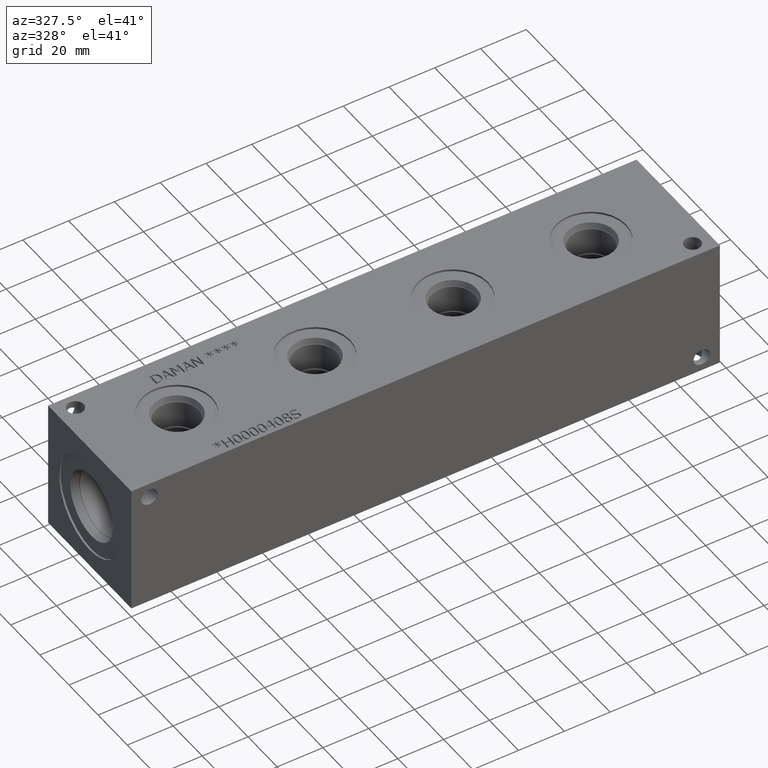
[diagram: clean part render]
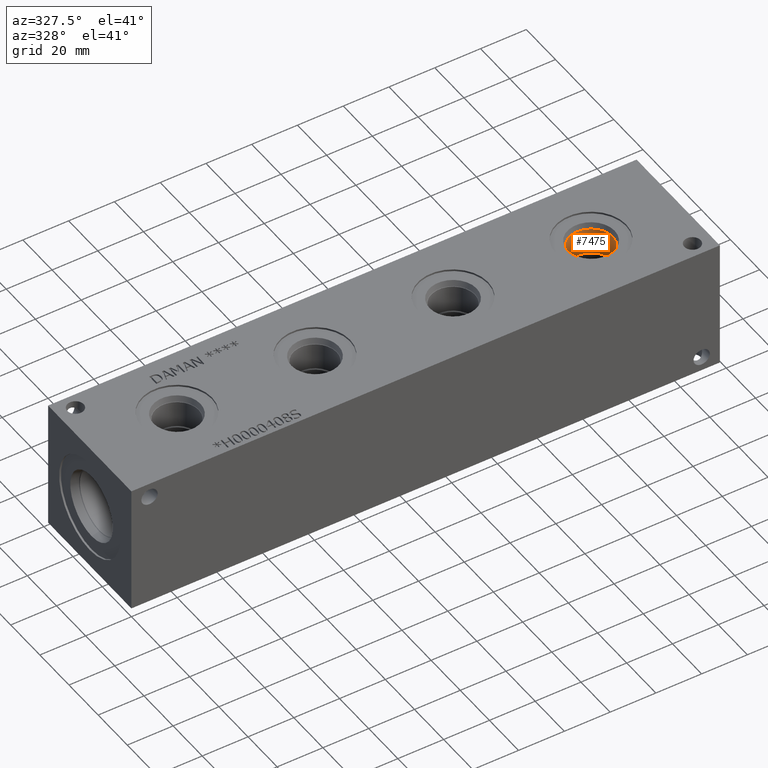
[diagram: same view with one face highlighted and labeled with its STEP entity id]
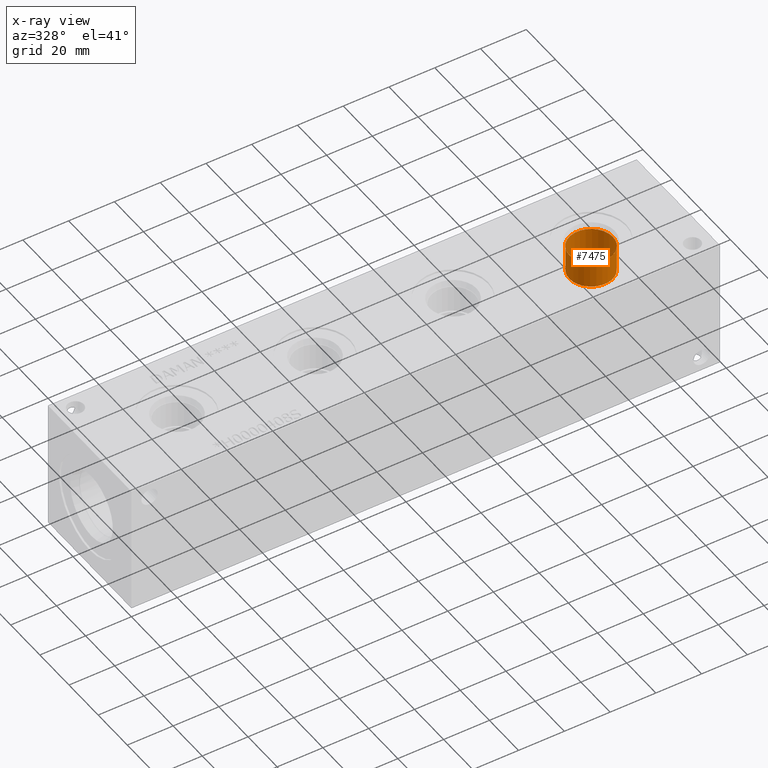
[diagram: x-ray of the same camera — body ghosted, the highlighted face saturated]
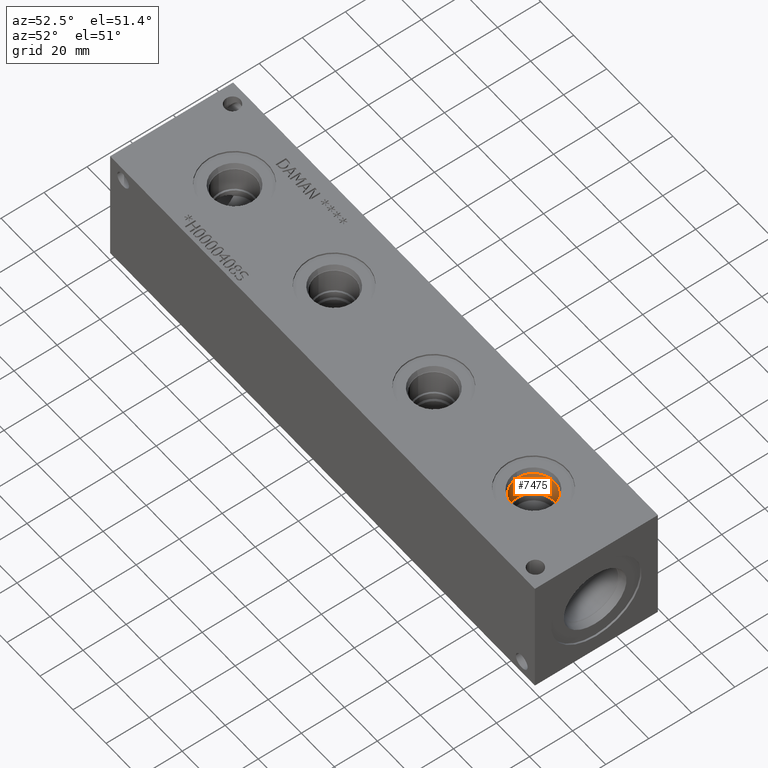
[diagram: same view with one face highlighted and labeled with its STEP entity id]
A machine part, auxiliary view. The second image highlights one B-rep face of the part: STEP entity #7475.
The next image is the same camera in x-ray: the body ghosted, the highlighted face saturated — about 0% of this face is hidden behind the body in this view.
A second angle (auxiliary view) of the same face is appended — the face is thin or edge-on in the first view.
In plain terms, the highlighted cylindrical surface (bore or boss wall) has radius 9.525 mm, axis along (0, 0, 1).
Its self-contained STEP definition (entity closure, byte-faithful):
#77=CYLINDRICAL_SURFACE('',#7889,9.525);
#153=CIRCLE('',#7822,9.525);
#191=CIRCLE('',#7887,9.525);
#192=CIRCLE('',#7888,9.525);
#848=FACE_OUTER_BOUND('',#1277,.T.);
#1277=EDGE_LOOP('',(#6639,#6640,#6641,#6642,#6643));
#1977=LINE('',#12889,#2669);
#2669=VECTOR('',#9368,9.525);
#3539=VERTEX_POINT('',#12755);
#3581=VERTEX_POINT('',#12884);
#3582=VERTEX_POINT('',#12885);
#4550=EDGE_CURVE('',#3539,#3539,#153,.T.);
#4609=EDGE_CURVE('',#3581,#3582,#191,.T.);
#4610=EDGE_CURVE('',#3582,#3581,#192,.T.);
#4611=EDGE_CURVE('',#3539,#3582,#1977,.T.);
#6639=ORIENTED_EDGE('',*,*,#4550,.T.);
#6640=ORIENTED_EDGE('',*,*,#4611,.T.);
#6641=ORIENTED_EDGE('',*,*,#4609,.F.);
#6642=ORIENTED_EDGE('',*,*,#4610,.F.);
#6643=ORIENTED_EDGE('',*,*,#4611,.F.);
#7475=ADVANCED_FACE('',(#848),#77,.F.);
#7822=AXIS2_PLACEMENT_3D('',#12757,#9211,#9212);
#7887=AXIS2_PLACEMENT_3D('',#12886,#9362,#9363);
#7888=AXIS2_PLACEMENT_3D('',#12887,#9364,#9365);
#7889=AXIS2_PLACEMENT_3D('',#12888,#9366,#9367);
#9211=DIRECTION('center_axis',(0.,0.,1.));
#9212=DIRECTION('ref_axis',(1.,0.,0.));
#9362=DIRECTION('center_axis',(0.,0.,1.));
#9363=DIRECTION('ref_axis',(1.,0.,0.));
#9364=DIRECTION('center_axis',(0.,0.,1.));
#9365=DIRECTION('ref_axis',(1.,0.,0.));
#9366=DIRECTION('center_axis',(0.,0.,1.));
#9367=DIRECTION('ref_axis',(1.,0.,0.));
#9368=DIRECTION('',(0.,0.,-1.));
#12755=CARTESIAN_POINT('',(209.55,28.575,53.7464));
#12757=CARTESIAN_POINT('Origin',(219.075,28.575,53.7464));
#12884=CARTESIAN_POINT('',(228.6,28.575,42.0878));
#12885=CARTESIAN_POINT('',(209.55,28.575,42.0878));
#12886=CARTESIAN_POINT('Origin',(219.075,28.575,42.0878));
#12887=CARTESIAN_POINT('Origin',(219.075,28.575,42.0878));
#12888=CARTESIAN_POINT('Origin',(219.075,28.575,49.6189));
#12889=CARTESIAN_POINT('',(209.55,28.575,49.6189));